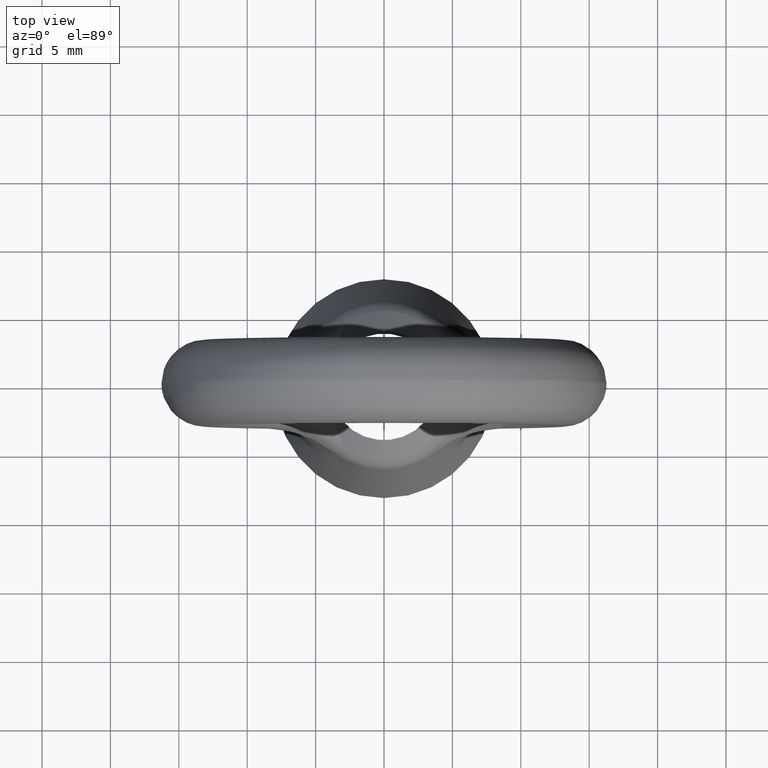
[diagram: clean part render]
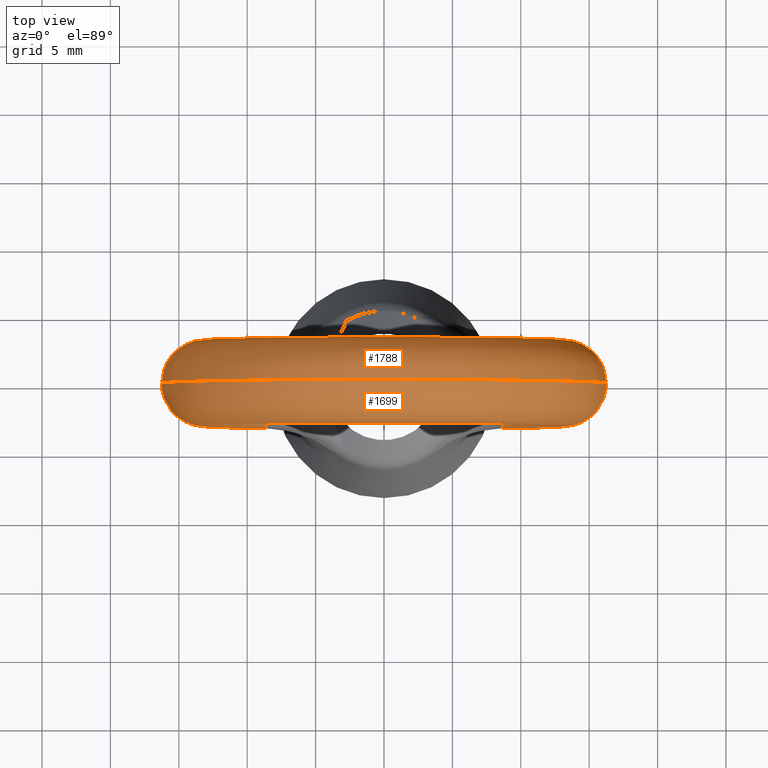
[diagram: same view with one multi-face feature highlighted, each face labeled with its STEP entity id]
A machine part, top view. The highlighted faces form ONE feature: a constant-radius fillet chain: 2 tangent blend faces with common blend radius 3.15 mm. The faces share edges in the B-rep.
Their STEP definitions:
[1] entity #1788 (Torus):
#1711 = ORIENTED_EDGE ( 'NONE', *, *, #1712, .T. ) ;
#1712 = EDGE_CURVE ( 'NONE', #1869, #1899, #2602, .T. ) ;
#1713 = ORIENTED_EDGE ( 'NONE', *, *, #1900, .T. ) ;
#1734 = EDGE_CURVE ( 'NONE', #1914, #1835, #3706, .T. ) ;
#1749 = ORIENTED_EDGE ( 'NONE', *, *, #1750, .T. ) ;
#1750 = EDGE_CURVE ( 'NONE', #1787, #1868, #3739, .T. ) ;
#1751 = ORIENTED_EDGE ( 'NONE', *, *, #1752, .T. ) ;
#1752 = EDGE_CURVE ( 'NONE', #1897, #1881, #3652, .T. ) ;
#1753 = ORIENTED_EDGE ( 'NONE', *, *, #1880, .T. ) ;
#1784 = EDGE_LOOP ( 'NONE', ( #1789, #1785, #1749, #1922, #1711, #1713, #1751, #1753, #1912, #1915 ) ) ;
#1785 = ORIENTED_EDGE ( 'NONE', *, *, #1786, .T. ) ;
#1786 = EDGE_CURVE ( 'NONE', #1832, #1787, #5914, .T. ) ;
#1787 = VERTEX_POINT ( 'NONE', #5913 ) ;
#1788 = ADVANCED_FACE ( 'NONE', ( #5915 ), #5908, .T. ) ;
#1789 = ORIENTED_EDGE ( 'NONE', *, *, #1834, .F. ) ;
#1832 = VERTEX_POINT ( 'NONE', #5800 ) ;
#1834 = EDGE_CURVE ( 'NONE', #1832, #1835, #5781, .T. ) ;
#1835 = VERTEX_POINT ( 'NONE', #5782 ) ;
#1867 = EDGE_CURVE ( 'NONE', #1868, #1869, #4744, .T. ) ;
#1868 = VERTEX_POINT ( 'NONE', #5748 ) ;
#1869 = VERTEX_POINT ( 'NONE', #5747 ) ;
#1876 = VERTEX_POINT ( 'NONE', #6024 ) ;
#1880 = EDGE_CURVE ( 'NONE', #1881, #1876, #6034, .T. ) ;
#1881 = VERTEX_POINT ( 'NONE', #6033 ) ;
#1897 = VERTEX_POINT ( 'NONE', #8610 ) ;
#1899 = VERTEX_POINT ( 'NONE', #8612 ) ;
#1900 = EDGE_CURVE ( 'NONE', #1899, #1897, #8605, .T. ) ;
#1912 = ORIENTED_EDGE ( 'NONE', *, *, #1913, .T. ) ;
#1913 = EDGE_CURVE ( 'NONE', #1876, #1914, #8583, .T. ) ;
#1914 = VERTEX_POINT ( 'NONE', #8582 ) ;
#1915 = ORIENTED_EDGE ( 'NONE', *, *, #1734, .T. ) ;
#1922 = ORIENTED_EDGE ( 'NONE', *, *, #1867, .T. ) ;
#2569 = CARTESIAN_POINT ( 'NONE',  ( 3.999981490171810700, 3.260163731452812900E-011, -9.165160999999910600 ) ) ;
#2570 = CARTESIAN_POINT ( 'NONE',  ( 3.999962982816434500, 0.002808003560106539600, -9.165160998920665500 ) ) ;
#2571 = CARTESIAN_POINT ( 'NONE',  ( 3.999972367223962400, 0.005615579782664868600, -9.165161000000098900 ) ) ;
#2572 = CARTESIAN_POINT ( 'NONE',  ( 3.999991132216449900, 0.008422718668389868700, -9.165160999999999400 ) ) ;
#2602 = B_SPLINE_CURVE_WITH_KNOTS ( 'NONE', 3,
 ( #2572, #2571, #2570, #2569 ),
 .UNSPECIFIED., .F., .F.,
 ( 4, 4 ),
 ( 0.0000000000000000000, 0.4999999980646996400 ),
 .UNSPECIFIED. ) ;
#3626 = CARTESIAN_POINT ( 'NONE',  ( -8.337987086359481400, 3.147936645071649500, -10.33646276591728100 ) ) ;
#3632 = CARTESIAN_POINT ( 'NONE',  ( -8.312404909536118300, 3.071505503442049500, -11.08662012559821100 ) ) ;
#3633 = CARTESIAN_POINT ( 'NONE',  ( -8.292050450925291500, 3.091525111162924500, -10.98221696392887200 ) ) ;
#3634 = CARTESIAN_POINT ( 'NONE',  ( -8.277385850554104300, 3.121656070123379800, -10.76759314454120900 ) ) ;
#3635 = CARTESIAN_POINT ( 'NONE',  ( -8.283336318728224500, 3.131663318407498200, -10.65732713738433400 ) ) ;
#3636 = CARTESIAN_POINT ( 'NONE',  ( -8.313732837009029100, 3.144696620107815500, -10.44254277456275800 ) ) ;
#3637 = CARTESIAN_POINT ( 'NONE',  ( -9.189684984203285700, 2.415179761928384600, -12.08607440607557700 ) ) ;
#3638 = CARTESIAN_POINT ( 'NONE',  ( -9.040267852425888200, 2.543175886030277800, -11.99568003891677400 ) ) ;
#3639 = CARTESIAN_POINT ( 'NONE',  ( -8.746080447934884800, 2.770209835889556600, -11.77071974506802700 ) ) ;
#3640 = CARTESIAN_POINT ( 'NONE',  ( -8.598566863425595800, 2.870161333299453300, -11.63294416541350500 ) ) ;
#3641 = CARTESIAN_POINT ( 'NONE',  ( -8.429750539380849600, 2.984855423661015600, -11.38029315938830300 ) ) ;
#3642 = CARTESIAN_POINT ( 'NONE',  ( -8.382240775937631800, 3.017470992307740300, -11.28839796495792700 ) ) ;
#3652 = B_SPLINE_CURVE_WITH_KNOTS ( 'NONE', 3,
 ( #3747, #3746, #3745, #3744 ),
 .UNSPECIFIED., .F., .F.,
 ( 4, 4 ),
 ( 0.4999999988099788100, 1.000000000000000000 ),
 .UNSPECIFIED. ) ;
#3654 = CARTESIAN_POINT ( 'NONE',  ( 4.024261728016150600, 0.7253447140926651000, -9.246910164980930000 ) ) ;
#3655 = CARTESIAN_POINT ( 'NONE',  ( 4.397009972005370100, 0.7512861656785381200, -9.091384436659941700 ) ) ;
#3656 = CARTESIAN_POINT ( 'NONE',  ( 4.760997584871210700, 0.7825824402040368900, -8.914790337478434500 ) ) ;
#3657 = CARTESIAN_POINT ( 'NONE',  ( 5.463636851211137300, 0.8591023394059875700, -8.526829542637170100 ) ) ;
#3658 = CARTESIAN_POINT ( 'NONE',  ( 5.801867953077771900, 0.9040838434073859000, -8.315759779454580800 ) ) ;
#3659 = CARTESIAN_POINT ( 'NONE',  ( 6.454938621439454800, 1.015253853033500700, -7.865693288551179700 ) ) ;
#3660 = CARTESIAN_POINT ( 'NONE',  ( 6.769488824901453800, 1.080701305985586300, -7.626065739889136300 ) ) ;
#3661 = CARTESIAN_POINT ( 'NONE',  ( 7.228880557016687200, 1.211096664535546100, -7.257738510328033000 ) ) ;
#3664 = CARTESIAN_POINT ( 'NONE',  ( -10.33585873304727300, 0.2154260556434551000, -12.60396083183626800 ) ) ;
#3665 = CARTESIAN_POINT ( 'NONE',  ( -10.31088712199422200, 0.4352481446868354800, -12.59490650697334100 ) ) ;
#3666 = CARTESIAN_POINT ( 'NONE',  ( -10.21555467064197500, 0.8551318872162256800, -12.55929400190993800 ) ) ;
#3667 = CARTESIAN_POINT ( 'NONE',  ( -10.14585836232674700, 1.057003727766357300, -12.53300668076658700 ) ) ;
#3668 = CARTESIAN_POINT ( 'NONE',  ( -9.966312791352212500, 1.445618531654995200, -12.46156807526767300 ) ) ;
#3669 = CARTESIAN_POINT ( 'NONE',  ( -9.856681933369134900, 1.630552095979789700, -12.41648652191918100 ) ) ;
#3670 = CARTESIAN_POINT ( 'NONE',  ( -9.613103595593781100, 1.969927918377300600, -12.30745436172960400 ) ) ;
#3671 = CARTESIAN_POINT ( 'NONE',  ( -9.477247805052863700, 2.127421616470448900, -12.24287917006255600 ) ) ;
#3683 = CARTESIAN_POINT ( 'NONE',  ( 7.379938305492214700, 1.259973778483892900, -7.133492704632513600 ) ) ;
#3684 = CARTESIAN_POINT ( 'NONE',  ( 7.681279846094426500, 1.377852584128238100, -6.889600714666701500 ) ) ;
#3685 = CARTESIAN_POINT ( 'NONE',  ( 7.829678210356343400, 1.445357187686502300, -6.770120559033261800 ) ) ;
#3686 = CARTESIAN_POINT ( 'NONE',  ( 8.054435226700622500, 1.579129940668238900, -6.617541317108806000 ) ) ;
#3687 = CARTESIAN_POINT ( 'NONE',  ( 8.130926494823464500, 1.630173595099915200, -6.570632226416077700 ) ) ;
#3688 = CARTESIAN_POINT ( 'NONE',  ( 8.281116334760929100, 1.749159516952521400, -6.503469664919897800 ) ) ;
#3689 = CARTESIAN_POINT ( 'NONE',  ( 8.356561715351794800, 1.819119765259763700, -6.483258094814222400 ) ) ;
#3690 = CARTESIAN_POINT ( 'NONE',  ( 8.490305937750077800, 1.972889747536270100, -6.499582774362381500 ) ) ;
#3691 = CARTESIAN_POINT ( 'NONE',  ( 8.545839656752196600, 2.053849618741341800, -6.537345252738233200 ) ) ;
#3692 = CARTESIAN_POINT ( 'NONE',  ( 8.629244566586569600, 2.201552242818956900, -6.650877082568151800 ) ) ;
#3693 = CARTESIAN_POINT ( 'NONE',  ( 8.658379416718048600, 2.268663117447154300, -6.724502514424058200 ) ) ;
#3694 = CARTESIAN_POINT ( 'NONE',  ( 8.724123564595403800, 2.448491292926896300, -6.960619916026973700 ) ) ;
#3695 = CARTESIAN_POINT ( 'NONE',  ( 8.742079240422731000, 2.545031399951100100, -7.142122907901365300 ) ) ;
#3696 = CARTESIAN_POINT ( 'NONE',  ( 8.759348011757241500, 2.709640415607881700, -7.509216179288952900 ) ) ;
#3697 = CARTESIAN_POINT ( 'NONE',  ( 8.757621542417556500, 2.778264144402322600, -7.698287697589407200 ) ) ;
#3698 = CARTESIAN_POINT ( 'NONE',  ( 8.741149756782213800, 2.896868525501882000, -8.083945421916041600 ) ) ;
#3699 = CARTESIAN_POINT ( 'NONE',  ( 8.726079927352106600, 2.946383384102094500, -8.280346889807294300 ) ) ;
#3701 = CARTESIAN_POINT ( 'NONE',  ( -8.368165387648680600, 3.149274589711115200, -10.23125406850496200 ) ) ;
#3706 = B_SPLINE_CURVE_WITH_KNOTS ( 'NONE', 3,
 ( #3701, #3626, #3636, #3635, #3634, #3633, #3632, #3642, #3641, #3640, #3639, #3638, #3637, #3671, #3670, #3669, #3668, #3667, #3666, #3665, #3664, #3726 ),
 .UNSPECIFIED., .F., .F.,
 ( 4, 2, 2, 2, 2, 2, 2, 2, 2, 2, 4 ),
 ( 0.0000000000000000000, 0.0003258848471435303200, 0.0006517696942870606400, 0.0009776545414305907900, 0.001303539388574121300, 0.001955309082861177700, 0.002607078777148234300, 0.003258848471435290900, 0.003910618165722346700, 0.004562387860009402400, 0.005214157554296458200 ),
 .UNSPECIFIED. ) ;
#3726 = CARTESIAN_POINT ( 'NONE',  ( -10.33585873304949000, 2.982147343839437400E-011, -12.60396083183708000 ) ) ;
#3735 = CARTESIAN_POINT ( 'NONE',  ( 8.685070411409379100, 3.027744675723395700, -8.670870309216359900 ) ) ;
#3736 = CARTESIAN_POINT ( 'NONE',  ( 8.659021761360005300, 3.059900955270894200, -8.866205975395514500 ) ) ;
#3737 = CARTESIAN_POINT ( 'NONE',  ( 8.564427238752482900, 3.134193837443767900, -9.452057230500996000 ) ) ;
#3738 = CARTESIAN_POINT ( 'NONE',  ( 8.479689832356013900, 3.154218987725296900, -9.842453471518101800 ) ) ;
#3739 = B_SPLINE_CURVE_WITH_KNOTS ( 'NONE', 3,
 ( #3740, #3738, #3737, #3736, #3735, #3699, #3698, #3697, #3696, #3695, #3694, #3693, #3692, #3691, #3690, #3689, #3688, #3687, #3686, #3685, #3684, #3683, #3661, #3660, #3659, #3658, #3657, #3656, #3655, #3654 ),
 .UNSPECIFIED., .F., .F.,
 ( 4, 2, 2, 2, 2, 2, 2, 2, 2, 2, 2, 2, 2, 2, 4 ),
 ( 0.0000000000000000000, 0.001196058168106712600, 0.001794087252160068400, 0.002392116336213424400, 0.002990145420266780200, 0.003588174504320136000, 0.003887189046346815400, 0.004186203588373494300, 0.004485218130400173300, 0.004784232672426853200, 0.005382261756480209400, 0.005980290840533567300, 0.007176349008640281500, 0.008372407176746995600, 0.009568465344853709800 ),
 .UNSPECIFIED. ) ;
#3740 = CARTESIAN_POINT ( 'NONE',  ( 8.368165387648680600, 3.149274589711115200, -10.23125406850496200 ) ) ;
#3744 = CARTESIAN_POINT ( 'NONE',  ( -3.999991132216399700, 0.008422718692571259900, -9.165160999999999400 ) ) ;
#3745 = CARTESIAN_POINT ( 'NONE',  ( -3.999972362470842300, 0.005614868498657867900, -9.165160999999363500 ) ) ;
#3746 = CARTESIAN_POINT ( 'NONE',  ( -3.999962978823111900, 0.002807833838299377400, -9.165161000663422500 ) ) ;
#3747 = CARTESIAN_POINT ( 'NONE',  ( -3.999981490171640600, -2.004224665597868900E-011, -9.165160999999983500 ) ) ;
#4742 = CARTESIAN_POINT ( 'NONE',  ( 4.007569930150495500, 0.4910554148525567200, -9.193712707938198400 ) ) ;
#4743 = CARTESIAN_POINT ( 'NONE',  ( 4.024261728016150600, 0.7253447140926651000, -9.246910164980930000 ) ) ;
#4744 = B_SPLINE_CURVE_WITH_KNOTS ( 'NONE', 3,
 ( #4743, #4742, #5752, #5754 ),
 .UNSPECIFIED., .F., .F.,
 ( 4, 4 ),
 ( 0.003243563931168010000, 0.003964786629245429700 ),
 .UNSPECIFIED. ) ;
#5747 = CARTESIAN_POINT ( 'NONE',  ( 3.999991132216449900, 0.008422718668389868700, -9.165160999999999400 ) ) ;
#5748 = CARTESIAN_POINT ( 'NONE',  ( 4.024261728016150600, 0.7253447140926651000, -9.246910164980930000 ) ) ;
#5752 = CARTESIAN_POINT ( 'NONE',  ( 4.000168480525697800, 0.2520148356358343200, -9.165794266929831100 ) ) ;
#5754 = CARTESIAN_POINT ( 'NONE',  ( 3.999991132216449900, 0.008422718668389868700, -9.165160999999999400 ) ) ;
#5777 = DIRECTION ( 'NONE',  ( 0.0000000000000000000, 0.0000000000000000000, -1.000000000000000000 ) ) ;
#5778 = DIRECTION ( 'NONE',  ( 0.0000000000000000000, -1.000000000000000000, 0.0000000000000000000 ) ) ;
#5779 = CARTESIAN_POINT ( 'NONE',  ( 0.0000000000000000000, 0.0000000000000000000, 0.0000000000000000000 ) ) ;
#5780 = AXIS2_PLACEMENT_3D ( 'NONE', #5779, #5778, #5777 ) ;
#5781 = CIRCLE ( 'NONE', #5780, 16.29999400000008000 ) ;
#5782 = CARTESIAN_POINT ( 'NONE',  ( -10.33585873304949000, 2.982147343839437400E-011, -12.60396083183708000 ) ) ;
#5800 = CARTESIAN_POINT ( 'NONE',  ( 10.33585873304948800, -2.981125298474203800E-011, -12.60396083183708000 ) ) ;
#5886 = CARTESIAN_POINT ( 'NONE',  ( 8.368165387648680600, 3.149274589711115200, -10.23125406850496200 ) ) ;
#5887 = CARTESIAN_POINT ( 'NONE',  ( 8.337918317693633300, 3.147933596236428800, -10.33670250975468500 ) ) ;
#5888 = CARTESIAN_POINT ( 'NONE',  ( 8.313564913864674100, 3.144684478861953900, -10.44318592053358700 ) ) ;
#5889 = CARTESIAN_POINT ( 'NONE',  ( 8.283131013655523800, 3.131514691765352200, -10.65932794006285900 ) ) ;
#5890 = CARTESIAN_POINT ( 'NONE',  ( 8.277351235776940500, 3.121485671418768000, -10.76923813848415000 ) ) ;
#5891 = CARTESIAN_POINT ( 'NONE',  ( 8.292335405802209200, 3.091185251834261700, -10.98419921980234400 ) ) ;
#5892 = CARTESIAN_POINT ( 'NONE',  ( 8.313842373340357000, 3.070307692145706600, -11.09171016323971600 ) ) ;
#5893 = CARTESIAN_POINT ( 'NONE',  ( 8.383055008647970000, 3.016929430761485800, -11.28978267413928200 ) ) ;
#5894 = CARTESIAN_POINT ( 'NONE',  ( 8.430410837011541100, 2.984399984107787100, -11.38169782293011800 ) ) ;
#5895 = CARTESIAN_POINT ( 'NONE',  ( 8.602339756656848000, 2.867612000401247800, -11.63773894251227500 ) ) ;
#5896 = CARTESIAN_POINT ( 'NONE',  ( 8.748198147842794400, 2.768660489023541300, -11.77251156634076600 ) ) ;
#5897 = CARTESIAN_POINT ( 'NONE',  ( 9.041187644161468000, 2.542380217233601900, -11.99620913943580400 ) ) ;
#5898 = CARTESIAN_POINT ( 'NONE',  ( 9.192924516925955900, 2.412166794469404100, -12.08794728870791600 ) ) ;
#5899 = CARTESIAN_POINT ( 'NONE',  ( 9.478698919370288000, 2.125736966952109300, -12.24356228235649400 ) ) ;
#5900 = CARTESIAN_POINT ( 'NONE',  ( 9.613327383858871800, 1.969730024822788700, -12.30756937013957300 ) ) ;
#5901 = CARTESIAN_POINT ( 'NONE',  ( 9.857776431291348700, 1.628912615741729300, -12.41696153333657400 ) ) ;
#5902 = CARTESIAN_POINT ( 'NONE',  ( 9.967355668161742300, 1.443507299833177700, -12.46198747192069500 ) ) ;
#5903 = CARTESIAN_POINT ( 'NONE',  ( 10.14558699803205900, 1.057444437344395900, -12.53289423855896500 ) ) ;
#5904 = CARTESIAN_POINT ( 'NONE',  ( 10.21600599793691600, 0.8542966603578581200, -12.55946650741992200 ) ) ;
#5905 = DIRECTION ( 'NONE',  ( 0.0000000000000000000, 0.0000000000000000000, -1.000000000000000000 ) ) ;
#5906 = DIRECTION ( 'NONE',  ( 0.0000000000000000000, -1.000000000000000000, 0.0000000000000000000 ) ) ;
#5907 = AXIS2_PLACEMENT_3D ( 'NONE', #5909, #5906, #5905 ) ;
#5908 = TOROIDAL_SURFACE ( 'NONE', #5907, 13.14999400000007900, 3.149999999999999900 ) ;
#5909 = CARTESIAN_POINT ( 'NONE',  ( 0.0000000000000000000, 0.0000000000000000000, 0.0000000000000000000 ) ) ;
#5910 = CARTESIAN_POINT ( 'NONE',  ( 10.31198178501752400, 0.4292555205472055600, -12.59531146000865000 ) ) ;
#5911 = CARTESIAN_POINT ( 'NONE',  ( 10.33585873305171500, 0.2153222000246661200, -12.60396083183789400 ) ) ;
#5912 = CARTESIAN_POINT ( 'NONE',  ( 10.33585873304948800, -2.981125298474203800E-011, -12.60396083183708000 ) ) ;
#5913 = CARTESIAN_POINT ( 'NONE',  ( 8.368165387648680600, 3.149274589711115200, -10.23125406850496200 ) ) ;
#5914 = B_SPLINE_CURVE_WITH_KNOTS ( 'NONE', 3,
 ( #5912, #5911, #5910, #5904, #5903, #5902, #5901, #5900, #5899, #5898, #5897, #5896, #5895, #5894, #5893, #5892, #5891, #5890, #5889, #5888, #5887, #5886 ),
 .UNSPECIFIED., .F., .F.,
 ( 4, 2, 2, 2, 2, 2, 2, 2, 2, 2, 4 ),
 ( 0.005214157554296467700, 0.005865613034474889500, 0.006517068514653310400, 0.007168523994831732200, 0.007819979475010153900, 0.008471434955188575700, 0.009122890435366997500, 0.009448618175456207500, 0.009774345915545419200, 0.01010007365563463100, 0.01042580139572384100 ),
 .UNSPECIFIED. ) ;
#5915 = FACE_OUTER_BOUND ( 'NONE', #1784, .T. ) ;
#6024 = CARTESIAN_POINT ( 'NONE',  ( -4.024261728016155000, 0.7253447140927270500, -9.246910164980949500 ) ) ;
#6033 = CARTESIAN_POINT ( 'NONE',  ( -3.999991132216399700, 0.008422718692571259900, -9.165160999999999400 ) ) ;
#6034 = B_SPLINE_CURVE_WITH_KNOTS ( 'NONE', 3,
 ( #6081, #6080, #6079, #6078 ),
 .UNSPECIFIED., .F., .F.,
 ( 4, 4 ),
 ( 0.003981419303080924900, 0.004703283089922379400 ),
 .UNSPECIFIED. ) ;
#6078 = CARTESIAN_POINT ( 'NONE',  ( -4.024261728016155000, 0.7253447140927270500, -9.246910164980949500 ) ) ;
#6079 = CARTESIAN_POINT ( 'NONE',  ( -4.007560303827858700, 0.4909202979285142700, -9.193682028445849100 ) ) ;
#6080 = CARTESIAN_POINT ( 'NONE',  ( -4.000168478974535100, 0.2520127043802210000, -9.165794261391019000 ) ) ;
#6081 = CARTESIAN_POINT ( 'NONE',  ( -3.999991132216399700, 0.008422718692571259900, -9.165160999999999400 ) ) ;
#8521 = CARTESIAN_POINT ( 'NONE',  ( -8.368165387648680600, 3.149274589711115200, -10.23125406850496200 ) ) ;
#8522 = CARTESIAN_POINT ( 'NONE',  ( -8.479574416864448200, 3.154213870819103400, -9.842855837224933100 ) ) ;
#8523 = CARTESIAN_POINT ( 'NONE',  ( -8.564494462674380400, 3.134259017881158000, -9.451984427984461600 ) ) ;
#8524 = CARTESIAN_POINT ( 'NONE',  ( -8.690957992164845400, 3.034700380818051300, -8.668070836780634300 ) ) ;
#8525 = CARTESIAN_POINT ( 'NONE',  ( -8.733317964650982600, 2.954670424647034600, -8.271055506111418200 ) ) ;
#8526 = CARTESIAN_POINT ( 'NONE',  ( -8.757639729174984600, 2.777418918082309200, -7.695965227751752700 ) ) ;
#8527 = CARTESIAN_POINT ( 'NONE',  ( -8.759358192822352500, 2.708931408831533300, -7.507299288474221100 ) ) ;
#8528 = CARTESIAN_POINT ( 'NONE',  ( -8.741835053968783200, 2.543520717662792800, -7.139094224977582400 ) ) ;
#8529 = CARTESIAN_POINT ( 'NONE',  ( -8.724035513379568800, 2.447946624887842300, -6.959567225794613100 ) ) ;
#8530 = CARTESIAN_POINT ( 'NONE',  ( -8.657858616044153500, 2.267392453009762200, -6.723005049561509200 ) ) ;
#8531 = CARTESIAN_POINT ( 'NONE',  ( -8.629051135253710900, 2.201124406285778000, -6.650429497844355000 ) ) ;
#8532 = CARTESIAN_POINT ( 'NONE',  ( -8.545367003216402000, 2.053098560502084600, -6.536887627653452000 ) ) ;
#8533 = CARTESIAN_POINT ( 'NONE',  ( -8.489081516299487300, 1.971423152647275400, -6.499328461671408000 ) ) ;
#8534 = CARTESIAN_POINT ( 'NONE',  ( -8.357037720385792000, 1.819726216540969300, -6.483421652817285400 ) ) ;
#8535 = CARTESIAN_POINT ( 'NONE',  ( -8.281698565189596900, 1.749625934245201200, -6.503216306414113700 ) ) ;
#8536 = CARTESIAN_POINT ( 'NONE',  ( -8.130463706539082100, 1.629801808340286800, -6.570832177782555100 ) ) ;
#8537 = CARTESIAN_POINT ( 'NONE',  ( -8.055356059739093400, 1.579720902469234700, -6.616957461248461000 ) ) ;
#8538 = CARTESIAN_POINT ( 'NONE',  ( -7.830400935033390300, 1.445702288599032700, -6.769548101732930900 ) ) ;
#8539 = CARTESIAN_POINT ( 'NONE',  ( -7.680336806447719800, 1.377452806380196300, -6.890356613366748200 ) ) ;
#8540 = CARTESIAN_POINT ( 'NONE',  ( -7.379557562950111600, 1.259855855246222200, -7.133808246847216600 ) ) ;
#8541 = CARTESIAN_POINT ( 'NONE',  ( -7.227616128993471300, 1.210673429840338300, -7.258780247603376700 ) ) ;
#8542 = CARTESIAN_POINT ( 'NONE',  ( -6.764970590266118600, 1.079548986308559400, -7.629631779228836000 ) ) ;
#8543 = CARTESIAN_POINT ( 'NONE',  ( -6.449065314777812800, 1.014092181846948200, -7.870014574489249300 ) ) ;
#8544 = CARTESIAN_POINT ( 'NONE',  ( -5.468461374700765100, 0.8476575837174245000, -8.544973162323941600 ) ) ;
#8545 = CARTESIAN_POINT ( 'NONE',  ( -4.771782419226775000, 0.7773684918921806000, -8.935014128419318500 ) ) ;
#8546 = CARTESIAN_POINT ( 'NONE',  ( -4.024261728016155000, 0.7253447140927270500, -9.246910164980949500 ) ) ;
#8582 = CARTESIAN_POINT ( 'NONE',  ( -8.368165387648680600, 3.149274589711115200, -10.23125406850496200 ) ) ;
#8583 = B_SPLINE_CURVE_WITH_KNOTS ( 'NONE', 3,
 ( #8546, #8545, #8544, #8543, #8542, #8541, #8540, #8539, #8538, #8537, #8536, #8535, #8534, #8533, #8532, #8531, #8530, #8529, #8528, #8527, #8526, #8525, #8524, #8523, #8522, #8521 ),
 .UNSPECIFIED., .F., .F.,
 ( 4, 2, 2, 2, 2, 2, 2, 2, 2, 2, 2, 2, 4 ),
 ( 0.0000000000000000000, 0.002400783633099242800, 0.003601175449648863600, 0.004201371357923673100, 0.004801567266198483900, 0.005101665220335891000, 0.005401763174473299100, 0.005701861128610706200, 0.006001959082748114200, 0.006602154991022929400, 0.007202350899297742800, 0.008402742715847375700, 0.009603134532397007700 ),
 .UNSPECIFIED. ) ;
#8601 = DIRECTION ( 'NONE',  ( 0.0000000000000000000, 0.0000000000000000000, -1.000000000000000000 ) ) ;
#8602 = DIRECTION ( 'NONE',  ( 0.0000000000000000000, -1.000000000000000000, 0.0000000000000000000 ) ) ;
#8603 = CARTESIAN_POINT ( 'NONE',  ( 0.0000000000000000000, 3.857510014540488600E-016, 0.0000000000000000000 ) ) ;
#8604 = AXIS2_PLACEMENT_3D ( 'NONE', #8603, #8602, #8601 ) ;
#8605 = CIRCLE ( 'NONE', #8604, 9.999994000000079100 ) ;
#8610 = CARTESIAN_POINT ( 'NONE',  ( -3.999981490171640600, -2.004224665597868900E-011, -9.165160999999983500 ) ) ;
#8612 = CARTESIAN_POINT ( 'NONE',  ( 3.999981490171810700, 3.260163731452812900E-011, -9.165160999999910600 ) ) ;
[2] entity #1699 (Torus):
#54 = DIRECTION ( 'NONE',  ( 0.0000000000000000000, 0.0000000000000000000, -1.000000000000000000 ) ) ;
#55 = DIRECTION ( 'NONE',  ( 0.0000000000000000000, -1.000000000000000000, 0.0000000000000000000 ) ) ;
#56 = AXIS2_PLACEMENT_3D ( 'NONE', #58, #55, #54 ) ;
#57 = TOROIDAL_SURFACE ( 'NONE', #56, 13.14999400000007900, 3.149999999999999900 ) ;
#58 = CARTESIAN_POINT ( 'NONE',  ( 0.0000000000000000000, 0.0000000000000000000, 0.0000000000000000000 ) ) ;
#59 = FACE_OUTER_BOUND ( 'NONE', #1700, .T. ) ;
#1699 = ADVANCED_FACE ( 'NONE', ( #59 ), #57, .T. ) ;
#1700 = EDGE_LOOP ( 'NONE', ( #1829, #1833, #1836, #1839, #1842, #1895, #1898, #1901, #1904, #1907 ) ) ;
#1829 = ORIENTED_EDGE ( 'NONE', *, *, #1830, .T. ) ;
#1830 = EDGE_CURVE ( 'NONE', #1831, #1832, #5799, .T. ) ;
#1831 = VERTEX_POINT ( 'NONE', #5798 ) ;
#1832 = VERTEX_POINT ( 'NONE', #5800 ) ;
#1833 = ORIENTED_EDGE ( 'NONE', *, *, #1834, .T. ) ;
#1834 = EDGE_CURVE ( 'NONE', #1832, #1835, #5781, .T. ) ;
#1835 = VERTEX_POINT ( 'NONE', #5782 ) ;
#1836 = ORIENTED_EDGE ( 'NONE', *, *, #1837, .T. ) ;
#1837 = EDGE_CURVE ( 'NONE', #1835, #1838, #5753, .T. ) ;
#1838 = VERTEX_POINT ( 'NONE', #4807 ) ;
#1839 = ORIENTED_EDGE ( 'NONE', *, *, #1840, .T. ) ;
#1840 = EDGE_CURVE ( 'NONE', #1838, #1841, #4791, .T. ) ;
#1841 = VERTEX_POINT ( 'NONE', #4911 ) ;
#1842 = ORIENTED_EDGE ( 'NONE', *, *, #1843, .T. ) ;
#1843 = EDGE_CURVE ( 'NONE', #1841, #1894, #4843, .T. ) ;
#1894 = VERTEX_POINT ( 'NONE', #8613 ) ;
#1895 = ORIENTED_EDGE ( 'NONE', *, *, #1896, .T. ) ;
#1896 = EDGE_CURVE ( 'NONE', #1894, #1897, #8611, .T. ) ;
#1897 = VERTEX_POINT ( 'NONE', #8610 ) ;
#1898 = ORIENTED_EDGE ( 'NONE', *, *, #1900, .F. ) ;
#1899 = VERTEX_POINT ( 'NONE', #8612 ) ;
#1900 = EDGE_CURVE ( 'NONE', #1899, #1897, #8605, .T. ) ;
#1901 = ORIENTED_EDGE ( 'NONE', *, *, #1902, .T. ) ;
#1902 = EDGE_CURVE ( 'NONE', #1899, #1903, #8600, .T. ) ;
#1903 = VERTEX_POINT ( 'NONE', #8599 ) ;
#1904 = ORIENTED_EDGE ( 'NONE', *, *, #1905, .T. ) ;
#1905 = EDGE_CURVE ( 'NONE', #1903, #1906, #8594, .T. ) ;
#1906 = VERTEX_POINT ( 'NONE', #8593 ) ;
#1907 = ORIENTED_EDGE ( 'NONE', *, *, #1908, .T. ) ;
#1908 = EDGE_CURVE ( 'NONE', #1906, #1831, #8587, .T. ) ;
#4785 = CARTESIAN_POINT ( 'NONE',  ( -8.368165387648680600, -3.149274589711115200, -10.23125406850496200 ) ) ;
#4786 = CARTESIAN_POINT ( 'NONE',  ( -8.685070411409379100, -3.027744675723395700, -8.670870309216359900 ) ) ;
#4787 = CARTESIAN_POINT ( 'NONE',  ( -8.659021761360005300, -3.059900955270894200, -8.866205975395514500 ) ) ;
#4788 = CARTESIAN_POINT ( 'NONE',  ( -8.564427238752482900, -3.134193837443767900, -9.452057230500996000 ) ) ;
#4789 = CARTESIAN_POINT ( 'NONE',  ( -8.479689832356013900, -3.154218987725296900, -9.842453471518101800 ) ) ;
#4790 = CARTESIAN_POINT ( 'NONE',  ( -8.368165387648680600, -3.149274589711115200, -10.23125406850496200 ) ) ;
#4791 = B_SPLINE_CURVE_WITH_KNOTS ( 'NONE', 3,
 ( #4790, #4789, #4788, #4787, #4786, #4910, #4909, #4908, #4907, #4906, #4905, #4904, #4903, #4902, #4892, #4891, #4890, #4889, #4888, #4887, #4886, #4885, #4901, #4900, #4899, #4898, #4897, #4896, #4895, #4894 ),
 .UNSPECIFIED., .F., .F.,
 ( 4, 2, 2, 2, 2, 2, 2, 2, 2, 2, 2, 2, 2, 2, 4 ),
 ( 0.0000000000000000000, 0.001196058168106712600, 0.001794087252160068400, 0.002392116336213424400, 0.002990145420266780200, 0.003588174504320136000, 0.003887189046346815400, 0.004186203588373494300, 0.004485218130400173300, 0.004784232672426853200, 0.005382261756480209400, 0.005980290840533567300, 0.007176349008640281500, 0.008372407176746995600, 0.009568465344853709800 ),
 .UNSPECIFIED. ) ;
#4807 = CARTESIAN_POINT ( 'NONE',  ( -8.368165387648680600, -3.149274589711115200, -10.23125406850496200 ) ) ;
#4838 = CARTESIAN_POINT ( 'NONE',  ( -3.999991132216445000, -0.008422718670231407700, -9.165160999999999400 ) ) ;
#4839 = CARTESIAN_POINT ( 'NONE',  ( -4.000168480525736000, -0.2520148356370889300, -9.165794266929971500 ) ) ;
#4840 = CARTESIAN_POINT ( 'NONE',  ( -4.007569930150539900, -0.4910554148531511800, -9.193712707938335200 ) ) ;
#4841 = CARTESIAN_POINT ( 'NONE',  ( -4.024261728016150600, -0.7253447140926659900, -9.246910164980930000 ) ) ;
#4843 = B_SPLINE_CURVE_WITH_KNOTS ( 'NONE', 3,
 ( #4841, #4840, #4839, #4838 ),
 .UNSPECIFIED., .F., .F.,
 ( 4, 4 ),
 ( 0.003243563931168004800, 0.003964786629243610000 ),
 .UNSPECIFIED. ) ;
#4885 = CARTESIAN_POINT ( 'NONE',  ( -7.379938305492214700, -1.259973778483892900, -7.133492704632513600 ) ) ;
#4886 = CARTESIAN_POINT ( 'NONE',  ( -7.681279846094426500, -1.377852584128238100, -6.889600714666701500 ) ) ;
#4887 = CARTESIAN_POINT ( 'NONE',  ( -7.829678210356343400, -1.445357187686502300, -6.770120559033261800 ) ) ;
#4888 = CARTESIAN_POINT ( 'NONE',  ( -8.054435226700622500, -1.579129940668238900, -6.617541317108806000 ) ) ;
#4889 = CARTESIAN_POINT ( 'NONE',  ( -8.130926494823464500, -1.630173595099915200, -6.570632226416077700 ) ) ;
#4890 = CARTESIAN_POINT ( 'NONE',  ( -8.281116334760929100, -1.749159516952521400, -6.503469664919897800 ) ) ;
#4891 = CARTESIAN_POINT ( 'NONE',  ( -8.356561715351794800, -1.819119765259763700, -6.483258094814222400 ) ) ;
#4892 = CARTESIAN_POINT ( 'NONE',  ( -8.490305937750077800, -1.972889747536270100, -6.499582774362381500 ) ) ;
#4894 = CARTESIAN_POINT ( 'NONE',  ( -4.024261728016150600, -0.7253447140926659900, -9.246910164980930000 ) ) ;
#4895 = CARTESIAN_POINT ( 'NONE',  ( -4.397009972005370100, -0.7512861656785381200, -9.091384436659941700 ) ) ;
#4896 = CARTESIAN_POINT ( 'NONE',  ( -4.760997584871210700, -0.7825824402040368900, -8.914790337478434500 ) ) ;
#4897 = CARTESIAN_POINT ( 'NONE',  ( -5.463636851211137300, -0.8591023394059875700, -8.526829542637170100 ) ) ;
#4898 = CARTESIAN_POINT ( 'NONE',  ( -5.801867953077771900, -0.9040838434073859000, -8.315759779454580800 ) ) ;
#4899 = CARTESIAN_POINT ( 'NONE',  ( -6.454938621439454800, -1.015253853033500700, -7.865693288551179700 ) ) ;
#4900 = CARTESIAN_POINT ( 'NONE',  ( -6.769488824901453800, -1.080701305985586300, -7.626065739889136300 ) ) ;
#4901 = CARTESIAN_POINT ( 'NONE',  ( -7.228880557016687200, -1.211096664535546100, -7.257738510328033000 ) ) ;
#4902 = CARTESIAN_POINT ( 'NONE',  ( -8.545839656752196600, -2.053849618741341800, -6.537345252738233200 ) ) ;
#4903 = CARTESIAN_POINT ( 'NONE',  ( -8.629244566586569600, -2.201552242818956900, -6.650877082568151800 ) ) ;
#4904 = CARTESIAN_POINT ( 'NONE',  ( -8.658379416718048600, -2.268663117447154300, -6.724502514424058200 ) ) ;
#4905 = CARTESIAN_POINT ( 'NONE',  ( -8.724123564595403800, -2.448491292926896300, -6.960619916026973700 ) ) ;
#4906 = CARTESIAN_POINT ( 'NONE',  ( -8.742079240422731000, -2.545031399951100100, -7.142122907901365300 ) ) ;
#4907 = CARTESIAN_POINT ( 'NONE',  ( -8.759348011757241500, -2.709640415607881700, -7.509216179288952900 ) ) ;
#4908 = CARTESIAN_POINT ( 'NONE',  ( -8.757621542417556500, -2.778264144402322600, -7.698287697589407200 ) ) ;
#4909 = CARTESIAN_POINT ( 'NONE',  ( -8.741149756782213800, -2.896868525501882000, -8.083945421916041600 ) ) ;
#4910 = CARTESIAN_POINT ( 'NONE',  ( -8.726079927352106600, -2.946383384102094500, -8.280346889807294300 ) ) ;
#4911 = CARTESIAN_POINT ( 'NONE',  ( -4.024261728016150600, -0.7253447140926659900, -9.246910164980930000 ) ) ;
#5729 = CARTESIAN_POINT ( 'NONE',  ( -8.337918317693620900, -3.147933596236427400, -10.33670250975468200 ) ) ;
#5730 = CARTESIAN_POINT ( 'NONE',  ( -8.313564913864670600, -3.144684478861952600, -10.44318592053358500 ) ) ;
#5731 = CARTESIAN_POINT ( 'NONE',  ( -8.283131013655523800, -3.131514691765351800, -10.65932794006285900 ) ) ;
#5732 = CARTESIAN_POINT ( 'NONE',  ( -8.277351235776937000, -3.121485671418768900, -10.76923813848415200 ) ) ;
#5733 = CARTESIAN_POINT ( 'NONE',  ( -8.292335405802202100, -3.091185251834262200, -10.98419921980234000 ) ) ;
#5734 = CARTESIAN_POINT ( 'NONE',  ( -8.313842373340358800, -3.070307692145707500, -11.09171016323970900 ) ) ;
#5735 = CARTESIAN_POINT ( 'NONE',  ( -8.383055008647971800, -3.016929430761486700, -11.28978267413928200 ) ) ;
#5736 = CARTESIAN_POINT ( 'NONE',  ( -8.430410837011544700, -2.984399984107787500, -11.38169782293011800 ) ) ;
#5737 = CARTESIAN_POINT ( 'NONE',  ( -8.602339756656849800, -2.867612000401247800, -11.63773894251227300 ) ) ;
#5738 = CARTESIAN_POINT ( 'NONE',  ( -8.748198147842797900, -2.768660489023540000, -11.77251156634076200 ) ) ;
#5739 = CARTESIAN_POINT ( 'NONE',  ( -9.041187644161466300, -2.542380217233600100, -11.99620913943580200 ) ) ;
#5740 = CARTESIAN_POINT ( 'NONE',  ( -9.192924516925961200, -2.412166794469402300, -12.08794728870791400 ) ) ;
#5741 = CARTESIAN_POINT ( 'NONE',  ( -9.478698919370286200, -2.125736966952107100, -12.24356228235649300 ) ) ;
#5742 = CARTESIAN_POINT ( 'NONE',  ( -9.613327383858875300, -1.969730024822783800, -12.30756937013957000 ) ) ;
#5743 = CARTESIAN_POINT ( 'NONE',  ( -9.857776431291357600, -1.628912615741725100, -12.41696153333657700 ) ) ;
#5744 = CARTESIAN_POINT ( 'NONE',  ( -9.967355668161747700, -1.443507299833173500, -12.46198747192070200 ) ) ;
#5745 = CARTESIAN_POINT ( 'NONE',  ( -10.14558699803206400, -1.057444437344389600, -12.53289423855897200 ) ) ;
#5746 = CARTESIAN_POINT ( 'NONE',  ( -10.21600599793691800, -0.8542966603578509000, -12.55946650741992000 ) ) ;
#5749 = CARTESIAN_POINT ( 'NONE',  ( -10.31198178501752400, -0.4292555205471967900, -12.59531146000865000 ) ) ;
#5750 = CARTESIAN_POINT ( 'NONE',  ( -10.33585873305171500, -0.2153222000246564600, -12.60396083183789500 ) ) ;
#5751 = CARTESIAN_POINT ( 'NONE',  ( -10.33585873304949000, 2.982147343839437400E-011, -12.60396083183708000 ) ) ;
#5753 = B_SPLINE_CURVE_WITH_KNOTS ( 'NONE', 3,
 ( #5751, #5750, #5749, #5746, #5745, #5744, #5743, #5742, #5741, #5740, #5739, #5738, #5737, #5736, #5735, #5734, #5733, #5732, #5731, #5730, #5729, #4785 ),
 .UNSPECIFIED., .F., .F.,
 ( 4, 2, 2, 2, 2, 2, 2, 2, 2, 2, 4 ),
 ( 0.005214157554296458200, 0.005865613034474882600, 0.006517068514653306900, 0.007168523994831732200, 0.007819979475010157400, 0.008471434955188580900, 0.009122890435367007900, 0.009448618175456217900, 0.009774345915545427900, 0.01010007365563464000, 0.01042580139572385100 ),
 .UNSPECIFIED. ) ;
#5755 = CARTESIAN_POINT ( 'NONE',  ( 10.33585873304948800, -2.981125298474203800E-011, -12.60396083183708000 ) ) ;
#5756 = CARTESIAN_POINT ( 'NONE',  ( 10.33585873304726600, -0.2154260556434446600, -12.60396083183626500 ) ) ;
#5757 = CARTESIAN_POINT ( 'NONE',  ( 10.31088712199422400, -0.4352481446868253200, -12.59490650697334300 ) ) ;
#5758 = CARTESIAN_POINT ( 'NONE',  ( 10.21555467064197700, -0.8551318872162164700, -12.55929400190993800 ) ) ;
#5759 = CARTESIAN_POINT ( 'NONE',  ( 10.14585836232675600, -1.057003727766350000, -12.53300668076658700 ) ) ;
#5760 = CARTESIAN_POINT ( 'NONE',  ( 9.966312791352217800, -1.445618531654989400, -12.46156807526768000 ) ) ;
#5761 = CARTESIAN_POINT ( 'NONE',  ( 9.856681933369136700, -1.630552095979784800, -12.41648652191917500 ) ) ;
#5762 = CARTESIAN_POINT ( 'NONE',  ( 9.613103595593786500, -1.969927918377296600, -12.30745436172960300 ) ) ;
#5763 = CARTESIAN_POINT ( 'NONE',  ( 9.477247805052867200, -2.127421616470441800, -12.24287917006255600 ) ) ;
#5764 = CARTESIAN_POINT ( 'NONE',  ( 9.189684984203287500, -2.415179761928380100, -12.08607440607557800 ) ) ;
#5765 = CARTESIAN_POINT ( 'NONE',  ( 9.040267852425889900, -2.543175886030276900, -11.99568003891677200 ) ) ;
#5766 = CARTESIAN_POINT ( 'NONE',  ( 8.746080447934888400, -2.770209835889555700, -11.77071974506803000 ) ) ;
#5767 = CARTESIAN_POINT ( 'NONE',  ( 8.598566863425599400, -2.870161333299451600, -11.63294416541351100 ) ) ;
#5768 = CARTESIAN_POINT ( 'NONE',  ( 8.429750539380849600, -2.984855423661014300, -11.38029315938829800 ) ) ;
#5769 = CARTESIAN_POINT ( 'NONE',  ( 8.382240775937633600, -3.017470992307739900, -11.28839796495793200 ) ) ;
#5770 = CARTESIAN_POINT ( 'NONE',  ( 8.312404909536116500, -3.071505503442048600, -11.08662012559821600 ) ) ;
#5771 = CARTESIAN_POINT ( 'NONE',  ( 8.292050450925289700, -3.091525111162925800, -10.98221696392887900 ) ) ;
#5772 = CARTESIAN_POINT ( 'NONE',  ( 8.277385850554104300, -3.121656070123380200, -10.76759314454120900 ) ) ;
#5773 = CARTESIAN_POINT ( 'NONE',  ( 8.283336318728228100, -3.131663318407498700, -10.65732713738433400 ) ) ;
#5774 = CARTESIAN_POINT ( 'NONE',  ( 8.313732837009030900, -3.144696620107816800, -10.44254277456276000 ) ) ;
#5775 = CARTESIAN_POINT ( 'NONE',  ( 8.337987086359481400, -3.147936645071649500, -10.33646276591728400 ) ) ;
#5776 = CARTESIAN_POINT ( 'NONE',  ( 8.368165387648680600, -3.149274589711115200, -10.23125406850496200 ) ) ;
#5777 = DIRECTION ( 'NONE',  ( 0.0000000000000000000, 0.0000000000000000000, -1.000000000000000000 ) ) ;
#5778 = DIRECTION ( 'NONE',  ( 0.0000000000000000000, -1.000000000000000000, 0.0000000000000000000 ) ) ;
#5779 = CARTESIAN_POINT ( 'NONE',  ( 0.0000000000000000000, 0.0000000000000000000, 0.0000000000000000000 ) ) ;
#5780 = AXIS2_PLACEMENT_3D ( 'NONE', #5779, #5778, #5777 ) ;
#5781 = CIRCLE ( 'NONE', #5780, 16.29999400000008000 ) ;
#5782 = CARTESIAN_POINT ( 'NONE',  ( -10.33585873304949000, 2.982147343839437400E-011, -12.60396083183708000 ) ) ;
#5798 = CARTESIAN_POINT ( 'NONE',  ( 8.368165387648680600, -3.149274589711115200, -10.23125406850496200 ) ) ;
#5799 = B_SPLINE_CURVE_WITH_KNOTS ( 'NONE', 3,
 ( #5776, #5775, #5774, #5773, #5772, #5771, #5770, #5769, #5768, #5767, #5766, #5765, #5764, #5763, #5762, #5761, #5760, #5759, #5758, #5757, #5756, #5755 ),
 .UNSPECIFIED., .F., .F.,
 ( 4, 2, 2, 2, 2, 2, 2, 2, 2, 2, 4 ),
 ( 0.0000000000000000000, 0.0003258848471435289600, 0.0006517696942870579300, 0.0009776545414305868900, 0.001303539388574115900, 0.001955309082861174200, 0.002607078777148232600, 0.003258848471435291400, 0.003910618165722350200, 0.004562387860009409400, 0.005214157554296467700 ),
 .UNSPECIFIED. ) ;
#5800 = CARTESIAN_POINT ( 'NONE',  ( 10.33585873304948800, -2.981125298474203800E-011, -12.60396083183708000 ) ) ;
#8556 = CARTESIAN_POINT ( 'NONE',  ( 8.368165387648680600, -3.149274589711115200, -10.23125406850496200 ) ) ;
#8557 = CARTESIAN_POINT ( 'NONE',  ( 8.479574416864448200, -3.154213870819103400, -9.842855837224933100 ) ) ;
#8558 = CARTESIAN_POINT ( 'NONE',  ( 8.564494462674380400, -3.134259017881158000, -9.451984427984461600 ) ) ;
#8559 = CARTESIAN_POINT ( 'NONE',  ( 8.690957992164845400, -3.034700380818051300, -8.668070836780634300 ) ) ;
#8560 = CARTESIAN_POINT ( 'NONE',  ( 8.733317964650982600, -2.954670424647034600, -8.271055506111418200 ) ) ;
#8561 = CARTESIAN_POINT ( 'NONE',  ( 8.757639729174984600, -2.777418918082309200, -7.695965227751752700 ) ) ;
#8562 = CARTESIAN_POINT ( 'NONE',  ( 8.759358192822352500, -2.708931408831533300, -7.507299288474221100 ) ) ;
#8563 = CARTESIAN_POINT ( 'NONE',  ( 8.741835053968783200, -2.543520717662792800, -7.139094224977582400 ) ) ;
#8564 = CARTESIAN_POINT ( 'NONE',  ( 8.724035513379568800, -2.447946624887842300, -6.959567225794613100 ) ) ;
#8565 = CARTESIAN_POINT ( 'NONE',  ( 8.657858616044153500, -2.267392453009762200, -6.723005049561509200 ) ) ;
#8566 = CARTESIAN_POINT ( 'NONE',  ( 8.629051135253710900, -2.201124406285778000, -6.650429497844355000 ) ) ;
#8567 = CARTESIAN_POINT ( 'NONE',  ( 8.545367003216402000, -2.053098560502084600, -6.536887627653452000 ) ) ;
#8568 = CARTESIAN_POINT ( 'NONE',  ( 8.489081516299487300, -1.971423152647275400, -6.499328461671408000 ) ) ;
#8569 = CARTESIAN_POINT ( 'NONE',  ( 8.357037720385792000, -1.819726216540969300, -6.483421652817285400 ) ) ;
#8570 = CARTESIAN_POINT ( 'NONE',  ( 8.281698565189596900, -1.749625934245201200, -6.503216306414113700 ) ) ;
#8571 = CARTESIAN_POINT ( 'NONE',  ( 8.130463706539082100, -1.629801808340286800, -6.570832177782555100 ) ) ;
#8572 = CARTESIAN_POINT ( 'NONE',  ( 8.055356059739093400, -1.579720902469234700, -6.616957461248461000 ) ) ;
#8573 = CARTESIAN_POINT ( 'NONE',  ( 7.830400935033390300, -1.445702288599032700, -6.769548101732930900 ) ) ;
#8574 = CARTESIAN_POINT ( 'NONE',  ( 7.680336806447719800, -1.377452806380196300, -6.890356613366748200 ) ) ;
#8575 = CARTESIAN_POINT ( 'NONE',  ( 7.379557562950111600, -1.259855855246222200, -7.133808246847216600 ) ) ;
#8576 = CARTESIAN_POINT ( 'NONE',  ( 7.227616128993471300, -1.210673429840338300, -7.258780247603376700 ) ) ;
#8577 = CARTESIAN_POINT ( 'NONE',  ( 6.764970590266118600, -1.079548986308559400, -7.629631779228836000 ) ) ;
#8578 = CARTESIAN_POINT ( 'NONE',  ( 6.449065314777812800, -1.014092181846948200, -7.870014574489249300 ) ) ;
#8579 = CARTESIAN_POINT ( 'NONE',  ( 5.468461374700765100, -0.8476575837174245000, -8.544973162323941600 ) ) ;
#8580 = CARTESIAN_POINT ( 'NONE',  ( 4.771782419226775000, -0.7773684918921806000, -8.935014128419318500 ) ) ;
#8581 = CARTESIAN_POINT ( 'NONE',  ( 4.024261728016155000, -0.7253447140927270500, -9.246910164980949500 ) ) ;
#8587 = B_SPLINE_CURVE_WITH_KNOTS ( 'NONE', 3,
 ( #8581, #8580, #8579, #8578, #8577, #8576, #8575, #8574, #8573, #8572, #8571, #8570, #8569, #8568, #8567, #8566, #8565, #8564, #8563, #8562, #8561, #8560, #8559, #8558, #8557, #8556 ),
 .UNSPECIFIED., .F., .F.,
 ( 4, 2, 2, 2, 2, 2, 2, 2, 2, 2, 2, 2, 4 ),
 ( 0.0000000000000000000, 0.002400783633099242800, 0.003601175449648863600, 0.004201371357923673100, 0.004801567266198483900, 0.005101665220335891000, 0.005401763174473299100, 0.005701861128610706200, 0.006001959082748114200, 0.006602154991022929400, 0.007202350899297742800, 0.008402742715847375700, 0.009603134532397007700 ),
 .UNSPECIFIED. ) ;
#8589 = CARTESIAN_POINT ( 'NONE',  ( 4.024261728016155000, -0.7253447140927270500, -9.246910164980949500 ) ) ;
#8590 = CARTESIAN_POINT ( 'NONE',  ( 4.007560303827858700, -0.4909202979285142700, -9.193682028445849100 ) ) ;
#8591 = CARTESIAN_POINT ( 'NONE',  ( 4.000168478974535100, -0.2520127043802210000, -9.165794261391019000 ) ) ;
#8592 = CARTESIAN_POINT ( 'NONE',  ( 3.999991132216439600, -0.008422718673202619600, -9.165161000000100700 ) ) ;
#8593 = CARTESIAN_POINT ( 'NONE',  ( 4.024261728016155000, -0.7253447140927270500, -9.246910164980949500 ) ) ;
#8594 = B_SPLINE_CURVE_WITH_KNOTS ( 'NONE', 3,
 ( #8592, #8591, #8590, #8589 ),
 .UNSPECIFIED., .F., .F.,
 ( 4, 4 ),
 ( 0.003981419303080924900, 0.004703283089922379400 ),
 .UNSPECIFIED. ) ;
#8595 = CARTESIAN_POINT ( 'NONE',  ( 3.999991132216439600, -0.008422718673202619600, -9.165161000000100700 ) ) ;
#8596 = CARTESIAN_POINT ( 'NONE',  ( 3.999972361337326400, -0.005614699182960014200, -9.165161000000100700 ) ) ;
#8597 = CARTESIAN_POINT ( 'NONE',  ( 3.999962977870810600, -0.002808003516641245300, -9.165161001079026100 ) ) ;
#8598 = CARTESIAN_POINT ( 'NONE',  ( 3.999981490171810700, 3.260163731452812900E-011, -9.165160999999910600 ) ) ;
#8599 = CARTESIAN_POINT ( 'NONE',  ( 3.999991132216439600, -0.008422718673202619600, -9.165161000000100700 ) ) ;
#8600 = B_SPLINE_CURVE_WITH_KNOTS ( 'NONE', 3,
 ( #8598, #8597, #8596, #8595 ),
 .UNSPECIFIED., .F., .F.,
 ( 4, 4 ),
 ( 0.4999999980646996400, 1.000000000000000000 ),
 .UNSPECIFIED. ) ;
#8601 = DIRECTION ( 'NONE',  ( 0.0000000000000000000, 0.0000000000000000000, -1.000000000000000000 ) ) ;
#8602 = DIRECTION ( 'NONE',  ( 0.0000000000000000000, -1.000000000000000000, 0.0000000000000000000 ) ) ;
#8603 = CARTESIAN_POINT ( 'NONE',  ( 0.0000000000000000000, 3.857510014540488600E-016, 0.0000000000000000000 ) ) ;
#8604 = AXIS2_PLACEMENT_3D ( 'NONE', #8603, #8602, #8601 ) ;
#8605 = CIRCLE ( 'NONE', #8604, 9.999994000000079100 ) ;
#8606 = CARTESIAN_POINT ( 'NONE',  ( -3.999981490171640600, -2.004224665597868900E-011, -9.165160999999983500 ) ) ;
#8607 = CARTESIAN_POINT ( 'NONE',  ( -3.999962981863452800, -0.002807833865018158700, -9.165160999336563900 ) ) ;
#8608 = CARTESIAN_POINT ( 'NONE',  ( -3.999972366089600500, -0.005615410093024401900, -9.165161000000109600 ) ) ;
#8609 = CARTESIAN_POINT ( 'NONE',  ( -3.999991132216445000, -0.008422718670231407700, -9.165160999999999400 ) ) ;
#8610 = CARTESIAN_POINT ( 'NONE',  ( -3.999981490171640600, -2.004224665597868900E-011, -9.165160999999983500 ) ) ;
#8611 = B_SPLINE_CURVE_WITH_KNOTS ( 'NONE', 3,
 ( #8609, #8608, #8607, #8606 ),
 .UNSPECIFIED., .F., .F.,
 ( 4, 4 ),
 ( 0.0000000000000000000, 0.4999999988099788100 ),
 .UNSPECIFIED. ) ;
#8612 = CARTESIAN_POINT ( 'NONE',  ( 3.999981490171810700, 3.260163731452812900E-011, -9.165160999999910600 ) ) ;
#8613 = CARTESIAN_POINT ( 'NONE',  ( -3.999991132216445000, -0.008422718670231407700, -9.165160999999999400 ) ) ;